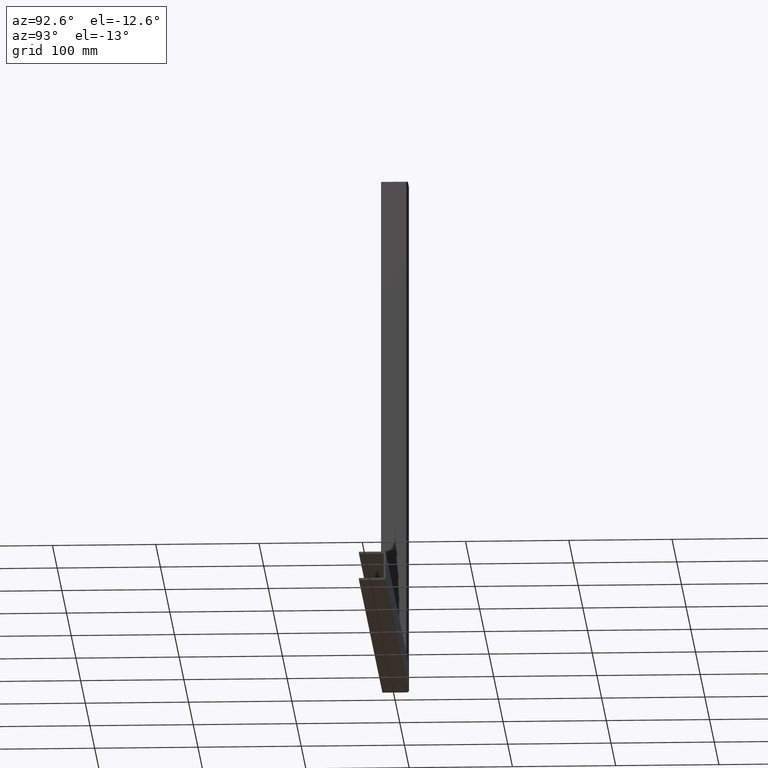
[diagram: clean part render]
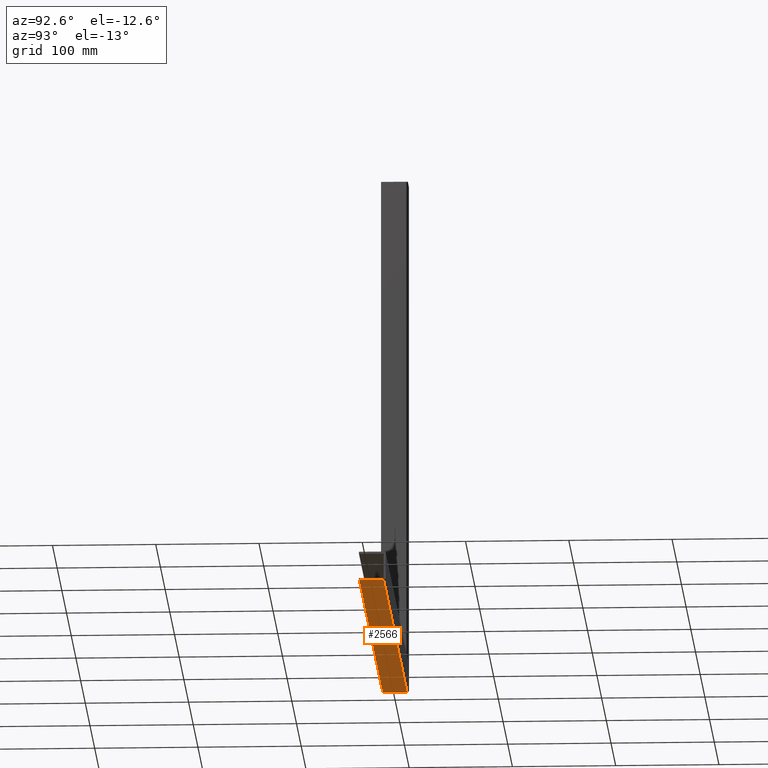
[diagram: same view with one face highlighted and labeled with its STEP entity id]
A machine part, auxiliary view. The second image highlights one B-rep face of the part: STEP entity #2566.
In plain terms, the highlighted planar face has unit normal (0, -0, 1).
Its self-contained STEP definition (entity closure, byte-faithful):
#259 = VECTOR ( 'NONE', #12336, 1000.000000000000000 ) ;
#313 = EDGE_LOOP ( 'NONE', ( #617, #17099, #15480, #1635 ) ) ;
#617 = ORIENTED_EDGE ( 'NONE', *, *, #17108, .T. ) ;
#939 = CARTESIAN_POINT ( 'NONE',  ( -14.00000000000000533, -12.49999999999999822, -500.0000000000000000 ) ) ;
#1547 = CARTESIAN_POINT ( 'NONE',  ( -15.50000000000001421, -12.49999999999999822, -500.0000000000000000 ) ) ;
#1635 = ORIENTED_EDGE ( 'NONE', *, *, #13380, .F. ) ;
#2026 = LINE ( 'NONE', #4601, #16534 ) ;
#2566 = ADVANCED_FACE ( 'NONE', ( #5636 ), #13766, .F. ) ;
#3592 = CARTESIAN_POINT ( 'NONE',  ( -15.50000000000001421, 11.00000000000000000, -500.0000000000000000 ) ) ;
#3610 = CARTESIAN_POINT ( 'NONE',  ( 486.0000000000000000, 11.00000000000000000, -500.0000000000000000 ) ) ;
#3943 = LINE ( 'NONE', #3592, #7611 ) ;
#4601 = CARTESIAN_POINT ( 'NONE',  ( 486.0000000000000000, -12.49999999999999822, -500.0000000000000000 ) ) ;
#4610 = VECTOR ( 'NONE', #5815, 1000.000000000000000 ) ;
#5625 = DIRECTION ( 'NONE',  ( 0.000000000000000000, -7.381802025433221547E-17, 1.000000000000000000 ) ) ;
#5636 = FACE_OUTER_BOUND ( 'NONE', #313, .T. ) ;
#5640 = AXIS2_PLACEMENT_3D ( 'NONE', #1547, #5625, #12453 ) ;
#5815 = DIRECTION ( 'NONE',  ( 1.000000000000000000, 0.000000000000000000, 0.000000000000000000 ) ) ;
#6418 = EDGE_CURVE ( 'NONE', #11541, #15481, #2026, .T. ) ;
#7611 = VECTOR ( 'NONE', #7617, 1000.000000000000000 ) ;
#7617 = DIRECTION ( 'NONE',  ( 1.000000000000000000, 0.000000000000000000, 0.000000000000000000 ) ) ;
#8936 = VERTEX_POINT ( 'NONE', #939 ) ;
#9653 = LINE ( 'NONE', #14889, #259 ) ;
#9917 = CARTESIAN_POINT ( 'NONE',  ( -15.50000000000001421, -12.49999999999999822, -500.0000000000000000 ) ) ;
#11541 = VERTEX_POINT ( 'NONE', #3610 ) ;
#11918 = CARTESIAN_POINT ( 'NONE',  ( -14.00000000000000533, 11.00000000000000000, -500.0000000000000000 ) ) ;
#12012 = EDGE_CURVE ( 'NONE', #15331, #11541, #3943, .T. ) ;
#12144 = CARTESIAN_POINT ( 'NONE',  ( 486.0000000000000000, -12.49999999999999822, -500.0000000000000000 ) ) ;
#12336 = DIRECTION ( 'NONE',  ( 7.381802025433220315E-17, 1.000000000000000000, 7.381802025433220315E-17 ) ) ;
#12453 = DIRECTION ( 'NONE',  ( 0.000000000000000000, -1.000000000000000000, -7.381802025433221547E-17 ) ) ;
#12808 = DIRECTION ( 'NONE',  ( -4.520050111193121591E-33, -1.000000000000000000, -7.381802025433221547E-17 ) ) ;
#13380 = EDGE_CURVE ( 'NONE', #8936, #15481, #16330, .T. ) ;
#13766 = PLANE ( 'NONE',  #5640 ) ;
#14889 = CARTESIAN_POINT ( 'NONE',  ( -14.00000000000000000, -12.49999999999996270, -500.0000000000000000 ) ) ;
#15331 = VERTEX_POINT ( 'NONE', #11918 ) ;
#15480 = ORIENTED_EDGE ( 'NONE', *, *, #6418, .T. ) ;
#15481 = VERTEX_POINT ( 'NONE', #12144 ) ;
#16330 = LINE ( 'NONE', #9917, #4610 ) ;
#16534 = VECTOR ( 'NONE', #12808, 1000.000000000000000 ) ;
#17099 = ORIENTED_EDGE ( 'NONE', *, *, #12012, .T. ) ;
#17108 = EDGE_CURVE ( 'NONE', #8936, #15331, #9653, .T. ) ;